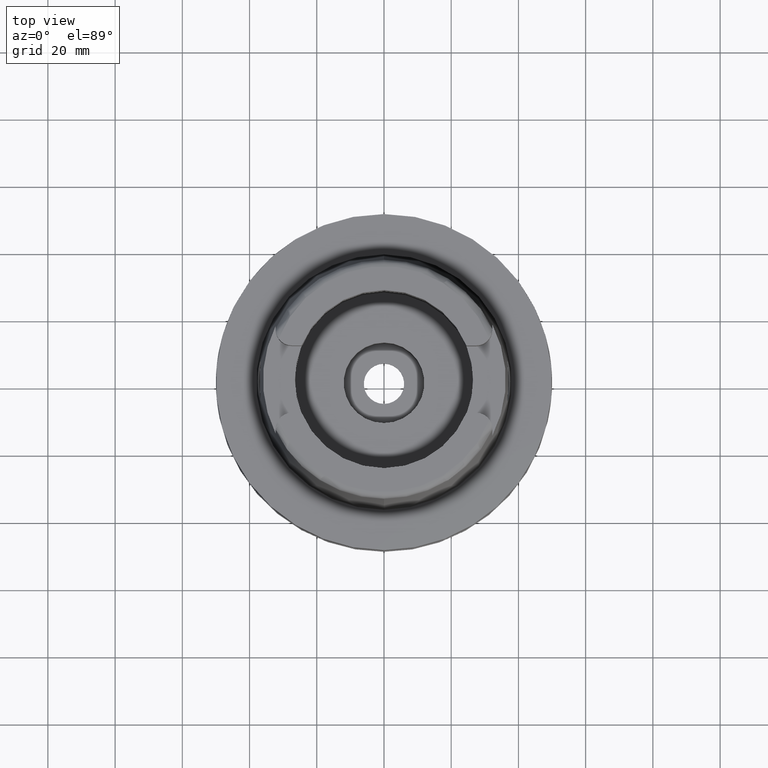
[diagram: clean part render]
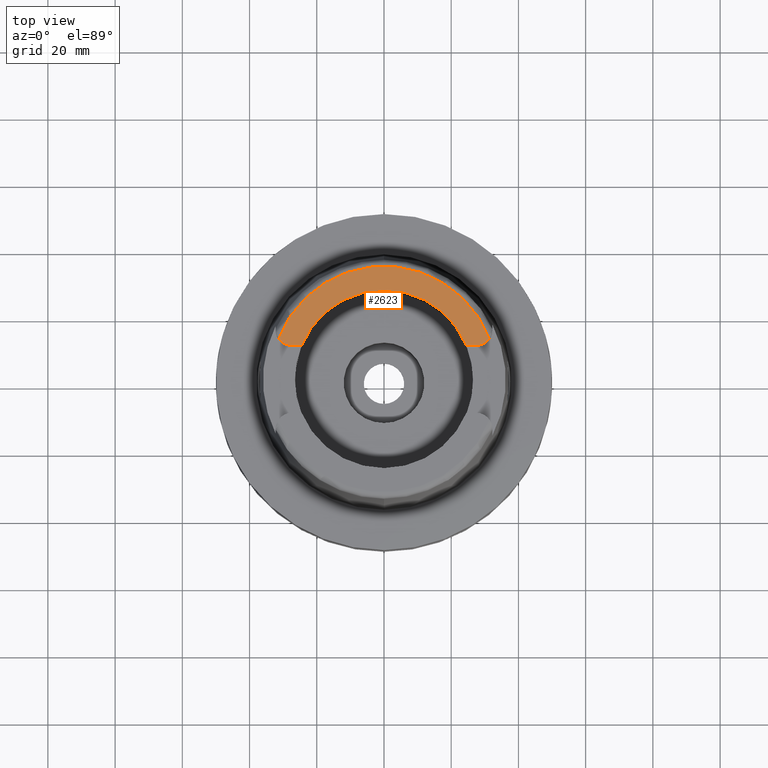
[diagram: same view with one face highlighted and labeled with its STEP entity id]
A machine part, top view. The second image highlights one B-rep face of the part: STEP entity #2623.
In plain terms, the highlighted planar face has unit normal (0, 0, 1).
Its self-contained STEP definition (entity closure, byte-faithful):
#17=CARTESIAN_POINT('',(-2.737E1,1.489E1,5.E1));
#18=DIRECTION('',(0.E0,0.E0,-1.E0));
#19=DIRECTION('',(0.E0,-1.E0,0.E0));
#20=AXIS2_PLACEMENT_3D('',#17,#18,#19);
#26=CARTESIAN_POINT('',(0.E0,0.E0,5.E1));
#27=DIRECTION('',(0.E0,0.E0,-1.E0));
#28=DIRECTION('',(-9.332215253018E-1,3.593015233942E-1,0.E0));
#29=AXIS2_PLACEMENT_3D('',#26,#27,#28);
#34=CARTESIAN_POINT('',(2.737E1,1.489E1,5.E1));
#35=DIRECTION('',(0.E0,0.E0,-1.E0));
#36=DIRECTION('',(8.163632566569E-1,-5.775387720150E-1,0.E0));
#37=AXIS2_PLACEMENT_3D('',#34,#35,#36);
#42=CARTESIAN_POINT('',(0.E0,0.E0,5.E1));
#43=DIRECTION('',(0.E0,0.E0,1.E0));
#44=DIRECTION('',(9.259134021805E-1,3.777358490566E-1,0.E0));
#45=AXIS2_PLACEMENT_3D('',#42,#43,#44);
#50=CARTESIAN_POINT('',(0.E0,0.E0,5.E1));
#51=DIRECTION('',(0.E0,0.E0,1.E0));
#52=DIRECTION('',(0.E0,1.E0,0.E0));
#53=AXIS2_PLACEMENT_3D('',#50,#51,#52);
#72=DIRECTION('',(1.E0,1.429464217237E-13,0.E0));
#73=VECTOR('',#72,2.833294842218E0);
#74=CARTESIAN_POINT('',(-2.737E1,1.001E1,5.E1));
#75=LINE('',#74,#73);
#2181=DIRECTION('',(1.E0,-1.423194637337E-13,0.E0));
#2182=VECTOR('',#2181,2.833294842218E0);
#2183=CARTESIAN_POINT('',(2.453670515778E1,1.001E1,5.E1));
#2184=LINE('',#2183,#2182);
#2270=CARTESIAN_POINT('',(-2.737E1,1.001E1,5.E1));
#2271=CARTESIAN_POINT('',(-3.135385269249E1,1.207161079257E1,5.E1));
#2272=VERTEX_POINT('',#2270);
#2273=VERTEX_POINT('',#2271);
#2274=CARTESIAN_POINT('',(3.135385269249E1,1.207161079257E1,5.E1));
#2275=VERTEX_POINT('',#2274);
#2276=CARTESIAN_POINT('',(2.737E1,1.001E1,5.E1));
#2277=VERTEX_POINT('',#2276);
#2278=CARTESIAN_POINT('',(2.453670515778E1,1.001E1,5.E1));
#2279=VERTEX_POINT('',#2278);
#2280=CARTESIAN_POINT('',(0.E0,2.65E1,5.E1));
#2281=VERTEX_POINT('',#2280);
#2282=CARTESIAN_POINT('',(-2.453670515778E1,1.001E1,5.E1));
#2283=VERTEX_POINT('',#2282);
#2602=CARTESIAN_POINT('',(0.E0,0.E0,5.E1));
#2603=DIRECTION('',(0.E0,0.E0,1.E0));
#2604=DIRECTION('',(0.E0,1.E0,0.E0));
#2605=AXIS2_PLACEMENT_3D('',#2602,#2603,#2604);
#2606=PLANE('',#2605);
#2608=ORIENTED_EDGE('',*,*,#2607,.T.);
#2610=ORIENTED_EDGE('',*,*,#2609,.T.);
#2612=ORIENTED_EDGE('',*,*,#2611,.T.);
#2614=ORIENTED_EDGE('',*,*,#2613,.F.);
#2616=ORIENTED_EDGE('',*,*,#2615,.T.);
#2618=ORIENTED_EDGE('',*,*,#2617,.T.);
#2620=ORIENTED_EDGE('',*,*,#2619,.F.);
#2621=EDGE_LOOP('',(#2608,#2610,#2612,#2614,#2616,#2618,#2620));
#2622=FACE_OUTER_BOUND('',#2621,.F.);
#21=CIRCLE('',#20,4.88E0);
#30=CIRCLE('',#29,3.359743838136E1);
#38=CIRCLE('',#37,4.88E0);
#46=CIRCLE('',#45,2.65E1);
#54=CIRCLE('',#53,2.65E1);
#2607=EDGE_CURVE('',#2272,#2273,#21,.T.);
#2609=EDGE_CURVE('',#2273,#2275,#30,.T.);
#2611=EDGE_CURVE('',#2275,#2277,#38,.T.);
#2613=EDGE_CURVE('',#2279,#2277,#2184,.T.);
#2615=EDGE_CURVE('',#2279,#2281,#46,.T.);
#2617=EDGE_CURVE('',#2281,#2283,#54,.T.);
#2619=EDGE_CURVE('',#2272,#2283,#75,.T.);
#2623=ADVANCED_FACE('',(#2622),#2606,.T.);